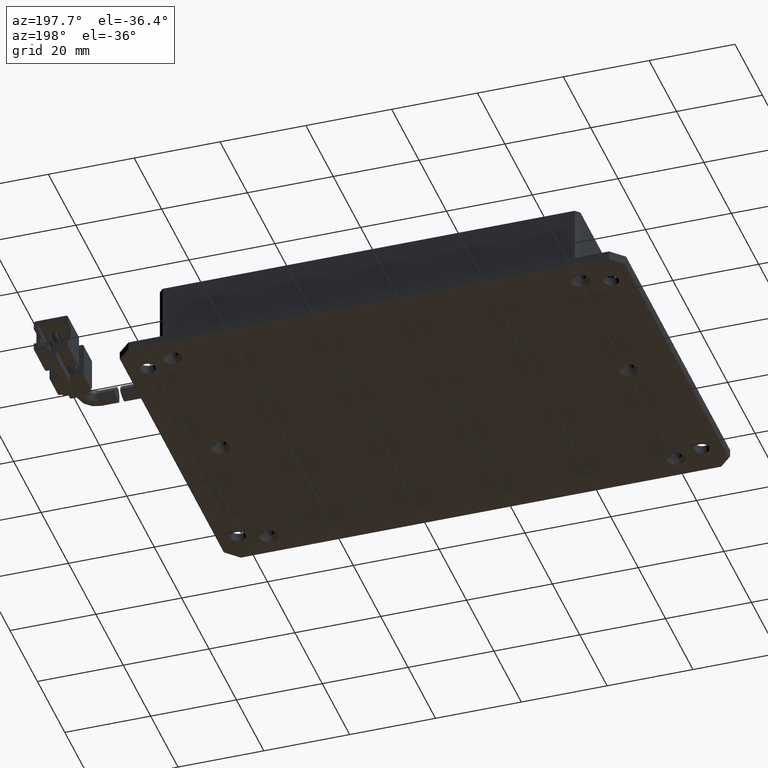
[diagram: clean part render]
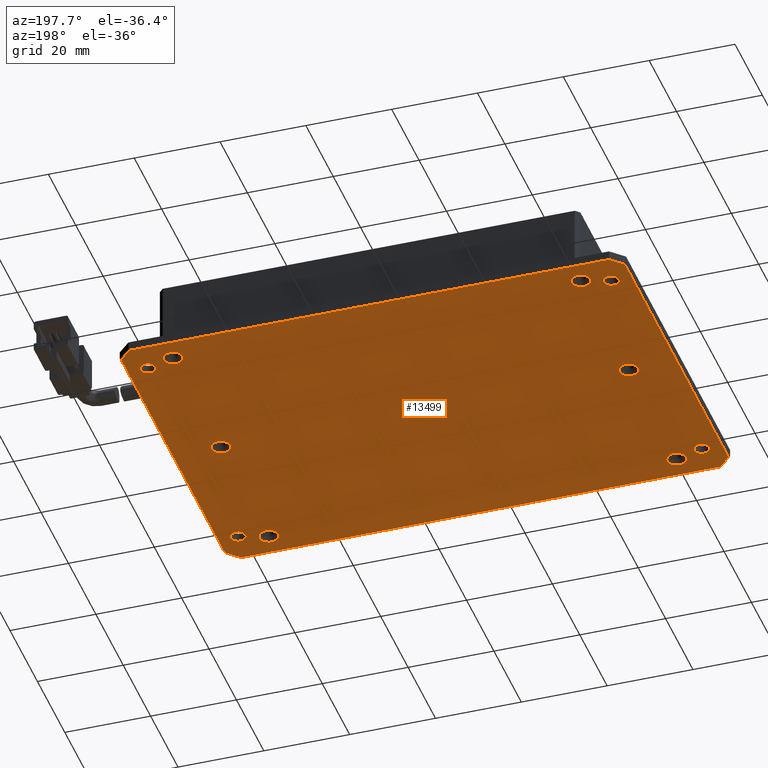
[diagram: same view with one face highlighted and labeled with its STEP entity id]
A machine part, auxiliary view. The second image highlights one B-rep face of the part: STEP entity #13499.
In plain terms, the highlighted planar face has unit normal (0, 0, 1).
Its self-contained STEP definition (entity closure, byte-faithful):
#88 = DIRECTION ( 'NONE',  ( -0.0000000000000000000, -0.0000000000000000000, 1.000000000000000000 ) ) ;
#95 = ORIENTED_EDGE ( 'NONE', *, *, #414, .T. ) ;
#174 = VERTEX_POINT ( 'NONE', #16019 ) ;
#329 = CARTESIAN_POINT ( 'NONE',  ( 58.70152730041114400, -30.14700267277581200, -2.000000000014035000 ) ) ;
#342 = CARTESIAN_POINT ( 'NONE',  ( -44.99847269950363700, 37.85299732722420200, -2.000000000004486600 ) ) ;
#364 = DIRECTION ( 'NONE',  ( -0.0000000000000000000, -0.0000000000000000000, 1.000000000000000000 ) ) ;
#407 = DIRECTION ( 'NONE',  ( -0.0000000000000000000, -0.0000000000000000000, 1.000000000000000000 ) ) ;
#414 = EDGE_CURVE ( 'NONE', #6717, #13260, #10863, .T. ) ;
#483 = LINE ( 'NONE', #14869, #8817 ) ;
#630 = DIRECTION ( 'NONE',  ( -1.000000000000000000, 0.0000000000000000000, 0.0000000000000000000 ) ) ;
#641 = AXIS2_PLACEMENT_3D ( 'NONE', #7327, #16288, #8607 ) ;
#709 = CARTESIAN_POINT ( 'NONE',  ( -43.24847269950363000, 37.85299732722420200, -2.000000000004486600 ) ) ;
#751 = ORIENTED_EDGE ( 'NONE', *, *, #8454, .T. ) ;
#814 = DIRECTION ( 'NONE',  ( -0.0000000000000000000, -0.0000000000000000000, 1.000000000000000000 ) ) ;
#876 = CARTESIAN_POINT ( 'NONE',  ( 56.50152730049636300, -30.14700267277581200, -2.000000000014035000 ) ) ;
#879 = ORIENTED_EDGE ( 'NONE', *, *, #2468, .T. ) ;
#956 = DIRECTION ( 'NONE',  ( -1.000000000000000000, 0.0000000000000000000, 0.0000000000000000000 ) ) ;
#970 = VECTOR ( 'NONE', #6437, 1000.000000000000000 ) ;
#997 = DIRECTION ( 'NONE',  ( -0.0000000000000000000, -0.0000000000000000000, 1.000000000000000000 ) ) ;
#1014 = CARTESIAN_POINT ( 'NONE',  ( 56.50152730049636300, 39.85299732722418800, -2.000000000014035000 ) ) ;
#1043 = VERTEX_POINT ( 'NONE', #3653 ) ;
#1049 = CARTESIAN_POINT ( 'NONE',  ( -40.69847269944570900, 39.85299732722418800, -1.999999999957191400 ) ) ;
#1079 = EDGE_LOOP ( 'NONE', ( #3616, #14574 ) ) ;
#1112 = EDGE_CURVE ( 'NONE', #4727, #6200, #14102, .T. ) ;
#1333 = VERTEX_POINT ( 'NONE', #16555 ) ;
#1344 = VECTOR ( 'NONE', #15798, 1000.000000000000100 ) ;
#1401 = CIRCLE ( 'NONE', #1888, 2.199999999914783900 ) ;
#1499 = AXIS2_PLACEMENT_3D ( 'NONE', #876, #814, #630 ) ;
#1704 = DIRECTION ( 'NONE',  ( -1.000000000000000000, 0.0000000000000000000, 0.0000000000000000000 ) ) ;
#1888 = AXIS2_PLACEMENT_3D ( 'NONE', #4460, #13335, #5732 ) ;
#2110 = CARTESIAN_POINT ( 'NONE',  ( 68.00152730049634900, -35.84700267277583000, -2.000000000004485300 ) ) ;
#2130 = EDGE_CURVE ( 'NONE', #6527, #6409, #7067, .T. ) ;
#2147 = ORIENTED_EDGE ( 'NONE', *, *, #1112, .T. ) ;
#2244 = VERTEX_POINT ( 'NONE', #14783 ) ;
#2248 = AXIS2_PLACEMENT_3D ( 'NONE', #6197, #5509, #5985 ) ;
#2364 = CIRCLE ( 'NONE', #10036, 1.750000000000001600 ) ;
#2392 = EDGE_CURVE ( 'NONE', #3595, #16807, #14895, .T. ) ;
#2468 = EDGE_CURVE ( 'NONE', #1333, #6717, #483, .T. ) ;
#2475 = ORIENTED_EDGE ( 'NONE', *, *, #5772, .T. ) ;
#2501 = EDGE_CURVE ( 'NONE', #13667, #10262, #9290, .T. ) ;
#2592 = EDGE_CURVE ( 'NONE', #6200, #4727, #8092, .T. ) ;
#2603 = ORIENTED_EDGE ( 'NONE', *, *, #8079, .T. ) ;
#2646 = DIRECTION ( 'NONE',  ( -0.0000000000000000000, -0.0000000000000000000, 1.000000000000000000 ) ) ;
#2655 = FACE_BOUND ( 'NONE', #10774, .T. ) ;
#2658 = CARTESIAN_POINT ( 'NONE',  ( 54.30152730058157600, 4.852997327224190200, -2.000000000014035000 ) ) ;
#2668 = AXIS2_PLACEMENT_3D ( 'NONE', #7926, #88, #9195 ) ;
#2721 = CARTESIAN_POINT ( 'NONE',  ( -43.24847269950363000, -28.14700267277579800, -2.000000000004486600 ) ) ;
#2839 = DIRECTION ( 'NONE',  ( -0.0000000000000000000, -0.0000000000000000000, 1.000000000000000000 ) ) ;
#2882 = VECTOR ( 'NONE', #3607, 1000.000000000000000 ) ;
#3036 = CIRCLE ( 'NONE', #4587, 2.199999999942067900 ) ;
#3043 = DIRECTION ( 'NONE',  ( -0.0000000000000000000, -0.0000000000000000000, 1.000000000000000000 ) ) ;
#3081 = EDGE_CURVE ( 'NONE', #10262, #1333, #11308, .T. ) ;
#3084 = CARTESIAN_POINT ( 'NONE',  ( 56.50152730049636300, 4.852997327224190200, -2.000000000014035000 ) ) ;
#3087 = ORIENTED_EDGE ( 'NONE', *, *, #2592, .T. ) ;
#3098 = FACE_BOUND ( 'NONE', #9732, .T. ) ;
#3179 = EDGE_CURVE ( 'NONE', #15046, #5297, #8908, .T. ) ;
#3286 = EDGE_CURVE ( 'NONE', #2244, #13703, #6931, .T. ) ;
#3341 = CARTESIAN_POINT ( 'NONE',  ( -36.29847269956157200, -30.14700267277580500, -1.999999999957191400 ) ) ;
#3415 = ORIENTED_EDGE ( 'NONE', *, *, #2501, .T. ) ;
#3489 = DIRECTION ( 'NONE',  ( 0.0000000000000000000, 0.0000000000000000000, 1.000000000000000000 ) ) ;
#3557 = EDGE_CURVE ( 'NONE', #5614, #6825, #10669, .T. ) ;
#3595 = VERTEX_POINT ( 'NONE', #329 ) ;
#3607 = DIRECTION ( 'NONE',  ( -1.000000000000000000, 5.551115123125781500E-017, 0.0000000000000000000 ) ) ;
#3616 = ORIENTED_EDGE ( 'NONE', *, *, #2130, .T. ) ;
#3653 = CARTESIAN_POINT ( 'NONE',  ( -40.69847269944570900, 4.852997327224197300, -1.999999999957191400 ) ) ;
#3869 = DIRECTION ( 'NONE',  ( -0.0000000000000000000, -0.0000000000000000000, 1.000000000000000000 ) ) ;
#4025 = CIRCLE ( 'NONE', #9300, 1.750000000000001600 ) ;
#4263 = CARTESIAN_POINT ( 'NONE',  ( 67.70152730049638000, 42.72873325851227800, -2.000000000004485300 ) ) ;
#4406 = DIRECTION ( 'NONE',  ( -1.000000000000000000, 0.0000000000000000000, 0.0000000000000000000 ) ) ;
#4448 = CARTESIAN_POINT ( 'NONE',  ( 61.25152730049637000, 37.85299732722420200, -2.000000000004486600 ) ) ;
#4460 = CARTESIAN_POINT ( 'NONE',  ( 56.50152730049636300, 39.85299732722418800, -2.000000000014035000 ) ) ;
#4587 = AXIS2_PLACEMENT_3D ( 'NONE', #10486, #2839, #11793 ) ;
#4650 = EDGE_CURVE ( 'NONE', #13455, #7499, #2364, .T. ) ;
#4727 = VERTEX_POINT ( 'NONE', #4448 ) ;
#4835 = AXIS2_PLACEMENT_3D ( 'NONE', #11480, #3869, #12760 ) ;
#5019 = DIRECTION ( 'NONE',  ( -5.551115123125781500E-017, -1.000000000000000000, -0.0000000000000000000 ) ) ;
#5084 = EDGE_LOOP ( 'NONE', ( #2147, #3087 ) ) ;
#5188 = ORIENTED_EDGE ( 'NONE', *, *, #3179, .T. ) ;
#5297 = VERTEX_POINT ( 'NONE', #15013 ) ;
#5386 = CARTESIAN_POINT ( 'NONE',  ( -38.49847269950364400, 4.852997327224197300, -1.999999999957191400 ) ) ;
#5436 = DIRECTION ( 'NONE',  ( -1.000000000000000000, 0.0000000000000000000, 0.0000000000000000000 ) ) ;
#5446 = DIRECTION ( 'NONE',  ( -0.0000000000000000000, -0.0000000000000000000, 1.000000000000000000 ) ) ;
#5468 = CARTESIAN_POINT ( 'NONE',  ( 63.00152730049636300, -28.14700267277580500, -2.000000000004486600 ) ) ;
#5504 = VERTEX_POINT ( 'NONE', #2721 ) ;
#5509 = DIRECTION ( 'NONE',  ( -0.0000000000000000000, -0.0000000000000000000, 1.000000000000000000 ) ) ;
#5547 = VECTOR ( 'NONE', #7126, 999.9999999999998900 ) ;
#5590 = AXIS2_PLACEMENT_3D ( 'NONE', #11915, #11607, #11330 ) ;
#5603 = CARTESIAN_POINT ( 'NONE',  ( -49.69847269950365400, 45.85299732722419500, -2.000000000004485300 ) ) ;
#5614 = VERTEX_POINT ( 'NONE', #10659 ) ;
#5630 = EDGE_CURVE ( 'NONE', #13099, #5504, #11947, .T. ) ;
#5732 = DIRECTION ( 'NONE',  ( -1.000000000000000000, 0.0000000000000000000, 0.0000000000000000000 ) ) ;
#5772 = EDGE_CURVE ( 'NONE', #8952, #12081, #11724, .T. ) ;
#5882 = CARTESIAN_POINT ( 'NONE',  ( -46.74847269950363700, -28.14700267277579800, -2.000000000004486600 ) ) ;
#5885 = DIRECTION ( 'NONE',  ( -0.0000000000000000000, -0.0000000000000000000, 1.000000000000000000 ) ) ;
#5928 = ORIENTED_EDGE ( 'NONE', *, *, #16726, .T. ) ;
#5985 = DIRECTION ( 'NONE',  ( -1.000000000000000000, 0.0000000000000000000, 0.0000000000000000000 ) ) ;
#6013 = AXIS2_PLACEMENT_3D ( 'NONE', #5468, #5446, #5436 ) ;
#6026 = CARTESIAN_POINT ( 'NONE',  ( -36.29847269956157200, 39.85299732722418800, -1.999999999957191400 ) ) ;
#6104 = FACE_BOUND ( 'NONE', #12580, .T. ) ;
#6134 = VECTOR ( 'NONE', #10623, 1000.000000000000000 ) ;
#6197 = CARTESIAN_POINT ( 'NONE',  ( 63.00152730049636300, 37.85299732722420200, -2.000000000004486600 ) ) ;
#6198 = EDGE_CURVE ( 'NONE', #6409, #6527, #9715, .T. ) ;
#6200 = VERTEX_POINT ( 'NONE', #10407 ) ;
#6233 = EDGE_LOOP ( 'NONE', ( #5188, #9421, #3415, #6312, #879, #95, #15737, #15226 ) ) ;
#6298 = EDGE_CURVE ( 'NONE', #5297, #13667, #9509, .T. ) ;
#6312 = ORIENTED_EDGE ( 'NONE', *, *, #3081, .T. ) ;
#6356 = EDGE_LOOP ( 'NONE', ( #2475, #14886 ) ) ;
#6409 = VERTEX_POINT ( 'NONE', #6026 ) ;
#6437 = DIRECTION ( 'NONE',  ( 0.7071067811865405800, 0.7071067811865544600, 0.0000000000000000000 ) ) ;
#6527 = VERTEX_POINT ( 'NONE', #1049 ) ;
#6671 = DIRECTION ( 'NONE',  ( -1.000000000000000000, 0.0000000000000000000, 0.0000000000000000000 ) ) ;
#6717 = VERTEX_POINT ( 'NONE', #4263 ) ;
#6825 = VERTEX_POINT ( 'NONE', #12146 ) ;
#6893 = CARTESIAN_POINT ( 'NONE',  ( -40.69847269944570900, -30.14700267277580500, -1.999999999957191400 ) ) ;
#6924 = FACE_BOUND ( 'NONE', #1079, .T. ) ;
#6931 = CIRCLE ( 'NONE', #6013, 1.749999999999994700 ) ;
#6998 = CARTESIAN_POINT ( 'NONE',  ( -49.69847269950365400, 42.72873325851222100, -2.000000000004483500 ) ) ;
#7067 = CIRCLE ( 'NONE', #7380, 2.199999999942067900 ) ;
#7126 = DIRECTION ( 'NONE',  ( -0.7071067811865512400, 0.7071067811865439100, 4.343201285374570600E-016 ) ) ;
#7228 = CARTESIAN_POINT ( 'NONE',  ( -46.87420863079169900, -35.84700267277582200, -2.000000000004488900 ) ) ;
#7305 = EDGE_CURVE ( 'NONE', #16807, #3595, #14771, .T. ) ;
#7324 = AXIS2_PLACEMENT_3D ( 'NONE', #11122, #3489, #12395 ) ;
#7327 = CARTESIAN_POINT ( 'NONE',  ( 63.00152730049636300, -28.14700267277580500, -2.000000000004486600 ) ) ;
#7380 = AXIS2_PLACEMENT_3D ( 'NONE', #11279, #11082, #10905 ) ;
#7436 = VERTEX_POINT ( 'NONE', #15680 ) ;
#7493 = EDGE_CURVE ( 'NONE', #5504, #13099, #13119, .T. ) ;
#7499 = VERTEX_POINT ( 'NONE', #9400 ) ;
#7586 = EDGE_LOOP ( 'NONE', ( #2603, #9809 ) ) ;
#7814 = CARTESIAN_POINT ( 'NONE',  ( 56.50152730049636300, 4.852997327224190200, -2.000000000014035000 ) ) ;
#7899 = ORIENTED_EDGE ( 'NONE', *, *, #11783, .T. ) ;
#7926 = CARTESIAN_POINT ( 'NONE',  ( -38.49847269950364400, 39.85299732722418800, -1.999999999957191400 ) ) ;
#8079 = EDGE_CURVE ( 'NONE', #6825, #5614, #1401, .T. ) ;
#8092 = CIRCLE ( 'NONE', #5590, 1.749999999999994700 ) ;
#8175 = CARTESIAN_POINT ( 'NONE',  ( -44.99847269950363700, -28.14700267277579800, -2.000000000004486600 ) ) ;
#8216 = CARTESIAN_POINT ( 'NONE',  ( -38.49847269950364400, -30.14700267277580500, -1.999999999957191400 ) ) ;
#8454 = EDGE_CURVE ( 'NONE', #7436, #12422, #12274, .T. ) ;
#8607 = DIRECTION ( 'NONE',  ( -1.000000000000000000, 0.0000000000000000000, 0.0000000000000000000 ) ) ;
#8703 = CARTESIAN_POINT ( 'NONE',  ( 67.70152730049638000, -33.02273860406387500, -2.000000000004485700 ) ) ;
#8769 = ORIENTED_EDGE ( 'NONE', *, *, #2392, .T. ) ;
#8799 = AXIS2_PLACEMENT_3D ( 'NONE', #13507, #5885, #14815 ) ;
#8817 = VECTOR ( 'NONE', #9206, 1000.000000000000000 ) ;
#8908 = LINE ( 'NONE', #7228, #5547 ) ;
#8939 = ORIENTED_EDGE ( 'NONE', *, *, #11591, .T. ) ;
#8952 = VERTEX_POINT ( 'NONE', #6893 ) ;
#9087 = DIRECTION ( 'NONE',  ( -1.000000000000000000, 0.0000000000000000000, 0.0000000000000000000 ) ) ;
#9095 = AXIS2_PLACEMENT_3D ( 'NONE', #1014, #997, #956 ) ;
#9112 = ORIENTED_EDGE ( 'NONE', *, *, #4650, .T. ) ;
#9195 = DIRECTION ( 'NONE',  ( -1.000000000000000000, 0.0000000000000000000, 0.0000000000000000000 ) ) ;
#9206 = DIRECTION ( 'NONE',  ( 0.7071067811865489100, -0.7071067811865462400, -2.171600642687302100E-016 ) ) ;
#9290 = LINE ( 'NONE', #6998, #970 ) ;
#9300 = AXIS2_PLACEMENT_3D ( 'NONE', #10317, #2646, #11632 ) ;
#9318 = ORIENTED_EDGE ( 'NONE', *, *, #3286, .T. ) ;
#9400 = CARTESIAN_POINT ( 'NONE',  ( -46.74847269950363700, 37.85299732722420200, -2.000000000004486600 ) ) ;
#9403 = CARTESIAN_POINT ( 'NONE',  ( 64.87726323178442600, -35.84700267277583000, -2.000000000004486600 ) ) ;
#9416 = DIRECTION ( 'NONE',  ( -0.0000000000000000000, -0.0000000000000000000, 1.000000000000000000 ) ) ;
#9421 = ORIENTED_EDGE ( 'NONE', *, *, #6298, .T. ) ;
#9438 = DIRECTION ( 'NONE',  ( -1.000000000000000000, 0.0000000000000000000, 0.0000000000000000000 ) ) ;
#9481 = DIRECTION ( 'NONE',  ( -1.000000000000000000, 0.0000000000000000000, 0.0000000000000000000 ) ) ;
#9482 = FACE_BOUND ( 'NONE', #16213, .T. ) ;
#9495 = CIRCLE ( 'NONE', #8799, 2.199999999942067900 ) ;
#9509 = LINE ( 'NONE', #5603, #6134 ) ;
#9682 = LINE ( 'NONE', #2110, #2882 ) ;
#9695 = DIRECTION ( 'NONE',  ( 1.000000000000000000, -5.551115123125781500E-017, -0.0000000000000000000 ) ) ;
#9715 = CIRCLE ( 'NONE', #2668, 2.199999999942067900 ) ;
#9732 = EDGE_LOOP ( 'NONE', ( #5928, #15165 ) ) ;
#9751 = CARTESIAN_POINT ( 'NONE',  ( 68.00152730049634900, 45.55299732722421200, -2.000000000004485300 ) ) ;
#9754 = PLANE ( 'NONE',  #7324 ) ;
#9758 = VERTEX_POINT ( 'NONE', #9403 ) ;
#9809 = ORIENTED_EDGE ( 'NONE', *, *, #3557, .T. ) ;
#9963 = EDGE_LOOP ( 'NONE', ( #7899, #751 ) ) ;
#10036 = AXIS2_PLACEMENT_3D ( 'NONE', #342, #9416, #1704 ) ;
#10102 = EDGE_CURVE ( 'NONE', #7499, #13455, #4025, .T. ) ;
#10262 = VERTEX_POINT ( 'NONE', #14542 ) ;
#10269 = ORIENTED_EDGE ( 'NONE', *, *, #7493, .T. ) ;
#10317 = CARTESIAN_POINT ( 'NONE',  ( -44.99847269950363700, 37.85299732722420200, -2.000000000004486600 ) ) ;
#10407 = CARTESIAN_POINT ( 'NONE',  ( 64.75152730049634900, 37.85299732722420200, -2.000000000004486600 ) ) ;
#10486 = CARTESIAN_POINT ( 'NONE',  ( -38.49847269950364400, 4.852997327224197300, -1.999999999957191400 ) ) ;
#10555 = ORIENTED_EDGE ( 'NONE', *, *, #7305, .T. ) ;
#10623 = DIRECTION ( 'NONE',  ( 5.551115123125781500E-017, 1.000000000000000000, 0.0000000000000000000 ) ) ;
#10659 = CARTESIAN_POINT ( 'NONE',  ( 58.70152730041114400, 39.85299732722418800, -2.000000000014035000 ) ) ;
#10669 = CIRCLE ( 'NONE', #9095, 2.199999999914783900 ) ;
#10677 = CARTESIAN_POINT ( 'NONE',  ( -44.99847269950363700, -28.14700267277579800, -2.000000000004486600 ) ) ;
#10774 = EDGE_LOOP ( 'NONE', ( #8939, #9318 ) ) ;
#10863 = LINE ( 'NONE', #14813, #10911 ) ;
#10905 = DIRECTION ( 'NONE',  ( -1.000000000000000000, 0.0000000000000000000, 0.0000000000000000000 ) ) ;
#10911 = VECTOR ( 'NONE', #5019, 1000.000000000000000 ) ;
#10980 = EDGE_LOOP ( 'NONE', ( #10555, #8769 ) ) ;
#11082 = DIRECTION ( 'NONE',  ( -0.0000000000000000000, -0.0000000000000000000, 1.000000000000000000 ) ) ;
#11122 = CARTESIAN_POINT ( 'NONE',  ( 68.00152730049634900, 45.85299732722419500, -2.000000000004485300 ) ) ;
#11279 = CARTESIAN_POINT ( 'NONE',  ( -38.49847269950364400, 39.85299732722418800, -1.999999999957191400 ) ) ;
#11299 = CIRCLE ( 'NONE', #641, 1.749999999999994700 ) ;
#11308 = LINE ( 'NONE', #9751, #14300 ) ;
#11330 = DIRECTION ( 'NONE',  ( -1.000000000000000000, 0.0000000000000000000, 0.0000000000000000000 ) ) ;
#11480 = CARTESIAN_POINT ( 'NONE',  ( 56.50152730049636300, -30.14700267277581200, -2.000000000014035000 ) ) ;
#11522 = EDGE_CURVE ( 'NONE', #12081, #8952, #9495, .T. ) ;
#11591 = EDGE_CURVE ( 'NONE', #13703, #2244, #11299, .T. ) ;
#11607 = DIRECTION ( 'NONE',  ( -0.0000000000000000000, -0.0000000000000000000, 1.000000000000000000 ) ) ;
#11621 = EDGE_CURVE ( 'NONE', #9758, #15046, #9682, .T. ) ;
#11632 = DIRECTION ( 'NONE',  ( -1.000000000000000000, 0.0000000000000000000, 0.0000000000000000000 ) ) ;
#11638 = LINE ( 'NONE', #11977, #1344 ) ;
#11724 = CIRCLE ( 'NONE', #12110, 2.199999999942067900 ) ;
#11783 = EDGE_CURVE ( 'NONE', #12422, #7436, #16527, .T. ) ;
#11793 = DIRECTION ( 'NONE',  ( -1.000000000000000000, 0.0000000000000000000, 0.0000000000000000000 ) ) ;
#11840 = EDGE_CURVE ( 'NONE', #174, #1043, #13065, .T. ) ;
#11909 = ORIENTED_EDGE ( 'NONE', *, *, #10102, .T. ) ;
#11915 = CARTESIAN_POINT ( 'NONE',  ( 63.00152730049636300, 37.85299732722420200, -2.000000000004486600 ) ) ;
#11947 = CIRCLE ( 'NONE', #15883, 1.750000000000001600 ) ;
#11977 = CARTESIAN_POINT ( 'NONE',  ( 67.70152730049638000, -33.02273860406387500, -2.000000000004487100 ) ) ;
#11984 = DIRECTION ( 'NONE',  ( -1.000000000000000000, 0.0000000000000000000, 0.0000000000000000000 ) ) ;
#12024 = DIRECTION ( 'NONE',  ( -0.0000000000000000000, -0.0000000000000000000, 1.000000000000000000 ) ) ;
#12081 = VERTEX_POINT ( 'NONE', #3341 ) ;
#12110 = AXIS2_PLACEMENT_3D ( 'NONE', #8216, #407, #9481 ) ;
#12146 = CARTESIAN_POINT ( 'NONE',  ( 54.30152730058157600, 39.85299732722418800, -2.000000000014035000 ) ) ;
#12274 = CIRCLE ( 'NONE', #16240, 2.199999999914783900 ) ;
#12309 = CARTESIAN_POINT ( 'NONE',  ( 54.30152730058157600, -30.14700267277581200, -2.000000000014035000 ) ) ;
#12356 = ORIENTED_EDGE ( 'NONE', *, *, #5630, .T. ) ;
#12395 = DIRECTION ( 'NONE',  ( 1.000000000000000000, -5.551115123125781500E-017, 0.0000000000000000000 ) ) ;
#12422 = VERTEX_POINT ( 'NONE', #2658 ) ;
#12489 = FACE_OUTER_BOUND ( 'NONE', #6233, .T. ) ;
#12519 = EDGE_CURVE ( 'NONE', #13260, #9758, #11638, .T. ) ;
#12580 = EDGE_LOOP ( 'NONE', ( #11909, #9112 ) ) ;
#12658 = CARTESIAN_POINT ( 'NONE',  ( -49.69847269950365400, 42.72873325851223600, -2.000000000004484900 ) ) ;
#12760 = DIRECTION ( 'NONE',  ( -1.000000000000000000, 0.0000000000000000000, 0.0000000000000000000 ) ) ;
#12884 = FACE_BOUND ( 'NONE', #7586, .T. ) ;
#13065 = CIRCLE ( 'NONE', #16761, 2.199999999942067900 ) ;
#13099 = VERTEX_POINT ( 'NONE', #5882 ) ;
#13119 = CIRCLE ( 'NONE', #13861, 1.750000000000001600 ) ;
#13260 = VERTEX_POINT ( 'NONE', #8703 ) ;
#13278 = FACE_BOUND ( 'NONE', #6356, .T. ) ;
#13281 = AXIS2_PLACEMENT_3D ( 'NONE', #7814, #16788, #9087 ) ;
#13335 = DIRECTION ( 'NONE',  ( -0.0000000000000000000, -0.0000000000000000000, 1.000000000000000000 ) ) ;
#13455 = VERTEX_POINT ( 'NONE', #709 ) ;
#13499 = ADVANCED_FACE ( 'NONE', ( #13278, #3098, #6924, #16737, #16326, #12884, #9482, #6104, #2655, #15924, #12489 ), #9754, .F. ) ;
#13507 = CARTESIAN_POINT ( 'NONE',  ( -38.49847269950364400, -30.14700267277580500, -1.999999999957191400 ) ) ;
#13572 = CARTESIAN_POINT ( 'NONE',  ( -46.87420863079171300, -35.84700267277582200, -2.000000000004485700 ) ) ;
#13667 = VERTEX_POINT ( 'NONE', #12658 ) ;
#13703 = VERTEX_POINT ( 'NONE', #15538 ) ;
#13861 = AXIS2_PLACEMENT_3D ( 'NONE', #10677, #3043, #11984 ) ;
#14102 = CIRCLE ( 'NONE', #2248, 1.749999999999994700 ) ;
#14271 = DIRECTION ( 'NONE',  ( -0.0000000000000000000, -0.0000000000000000000, 1.000000000000000000 ) ) ;
#14300 = VECTOR ( 'NONE', #9695, 1000.000000000000000 ) ;
#14542 = CARTESIAN_POINT ( 'NONE',  ( -46.87420863079169900, 45.55299732722422600, -2.000000000004483500 ) ) ;
#14574 = ORIENTED_EDGE ( 'NONE', *, *, #6198, .T. ) ;
#14771 = CIRCLE ( 'NONE', #4835, 2.199999999914783900 ) ;
#14783 = CARTESIAN_POINT ( 'NONE',  ( 64.75152730049634900, -28.14700267277580500, -2.000000000004486600 ) ) ;
#14813 = CARTESIAN_POINT ( 'NONE',  ( 67.70152730049638000, 45.85299732722419500, -2.000000000004485300 ) ) ;
#14815 = DIRECTION ( 'NONE',  ( -1.000000000000000000, 0.0000000000000000000, 0.0000000000000000000 ) ) ;
#14869 = CARTESIAN_POINT ( 'NONE',  ( 64.87726323178444000, 45.55299732722421200, -2.000000000004484900 ) ) ;
#14886 = ORIENTED_EDGE ( 'NONE', *, *, #11522, .T. ) ;
#14895 = CIRCLE ( 'NONE', #1499, 2.199999999914783900 ) ;
#15013 = CARTESIAN_POINT ( 'NONE',  ( -49.69847269950365400, -33.02273860406389600, -2.000000000004484900 ) ) ;
#15046 = VERTEX_POINT ( 'NONE', #13572 ) ;
#15165 = ORIENTED_EDGE ( 'NONE', *, *, #11840, .T. ) ;
#15226 = ORIENTED_EDGE ( 'NONE', *, *, #11621, .T. ) ;
#15538 = CARTESIAN_POINT ( 'NONE',  ( 61.25152730049637000, -28.14700267277580500, -2.000000000004486600 ) ) ;
#15680 = CARTESIAN_POINT ( 'NONE',  ( 58.70152730041114400, 4.852997327224190200, -2.000000000014035000 ) ) ;
#15737 = ORIENTED_EDGE ( 'NONE', *, *, #12519, .T. ) ;
#15798 = DIRECTION ( 'NONE',  ( -0.7071067811865460200, -0.7071067811865489100, -8.686402570749155000E-016 ) ) ;
#15883 = AXIS2_PLACEMENT_3D ( 'NONE', #8175, #364, #9438 ) ;
#15924 = FACE_BOUND ( 'NONE', #5084, .T. ) ;
#16019 = CARTESIAN_POINT ( 'NONE',  ( -36.29847269956157200, 4.852997327224197300, -1.999999999957191400 ) ) ;
#16213 = EDGE_LOOP ( 'NONE', ( #12356, #10269 ) ) ;
#16240 = AXIS2_PLACEMENT_3D ( 'NONE', #3084, #12024, #4406 ) ;
#16288 = DIRECTION ( 'NONE',  ( -0.0000000000000000000, -0.0000000000000000000, 1.000000000000000000 ) ) ;
#16326 = FACE_BOUND ( 'NONE', #9963, .T. ) ;
#16527 = CIRCLE ( 'NONE', #13281, 2.199999999914783900 ) ;
#16555 = CARTESIAN_POINT ( 'NONE',  ( 64.87726323178444000, 45.55299732722421200, -2.000000000004485300 ) ) ;
#16726 = EDGE_CURVE ( 'NONE', #1043, #174, #3036, .T. ) ;
#16737 = FACE_BOUND ( 'NONE', #10980, .T. ) ;
#16761 = AXIS2_PLACEMENT_3D ( 'NONE', #5386, #14271, #6671 ) ;
#16788 = DIRECTION ( 'NONE',  ( -0.0000000000000000000, -0.0000000000000000000, 1.000000000000000000 ) ) ;
#16807 = VERTEX_POINT ( 'NONE', #12309 ) ;